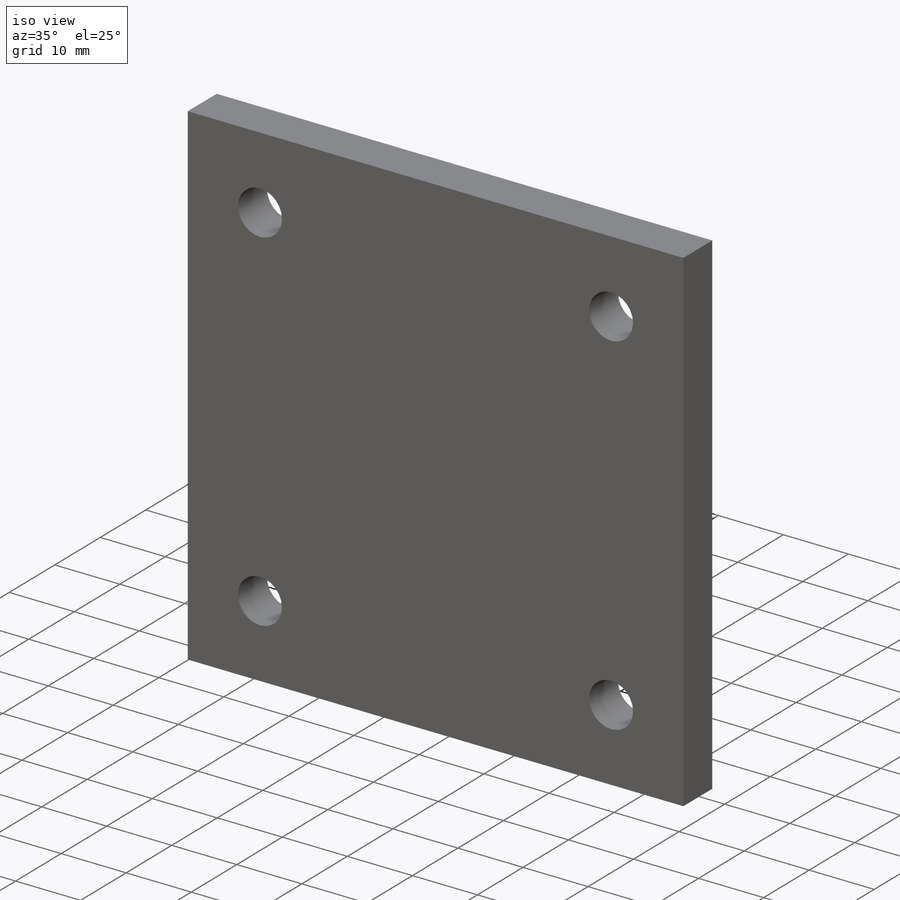
[diagram: iso view]
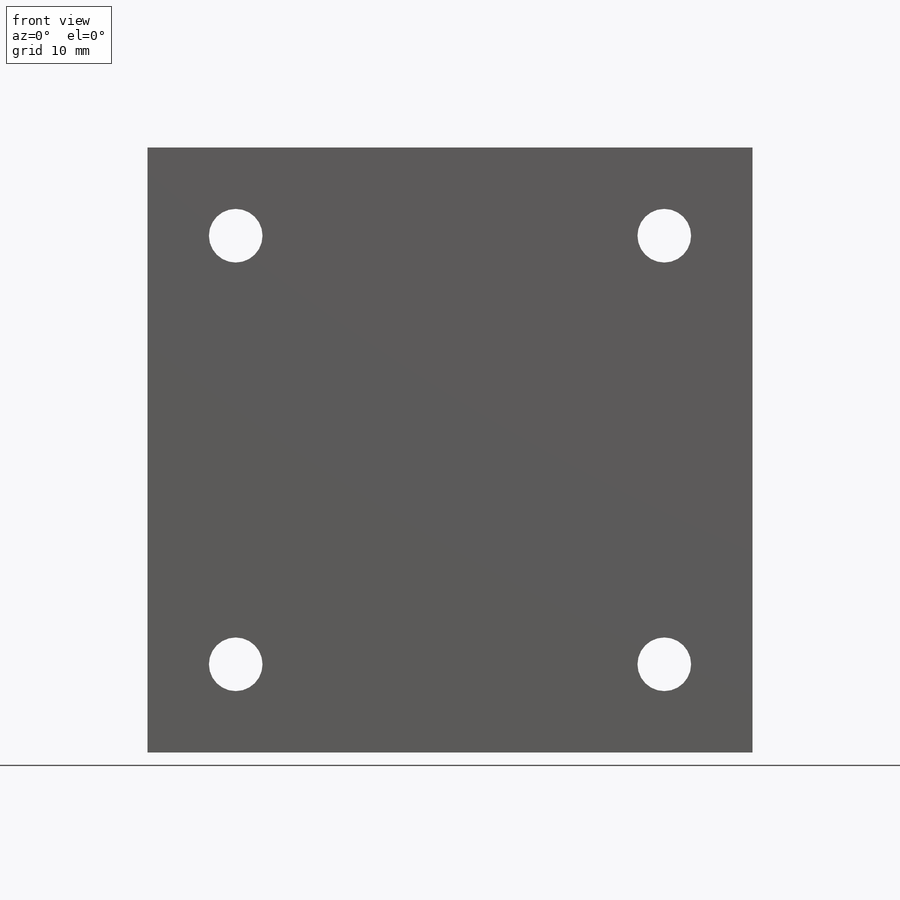
[diagram: front view]
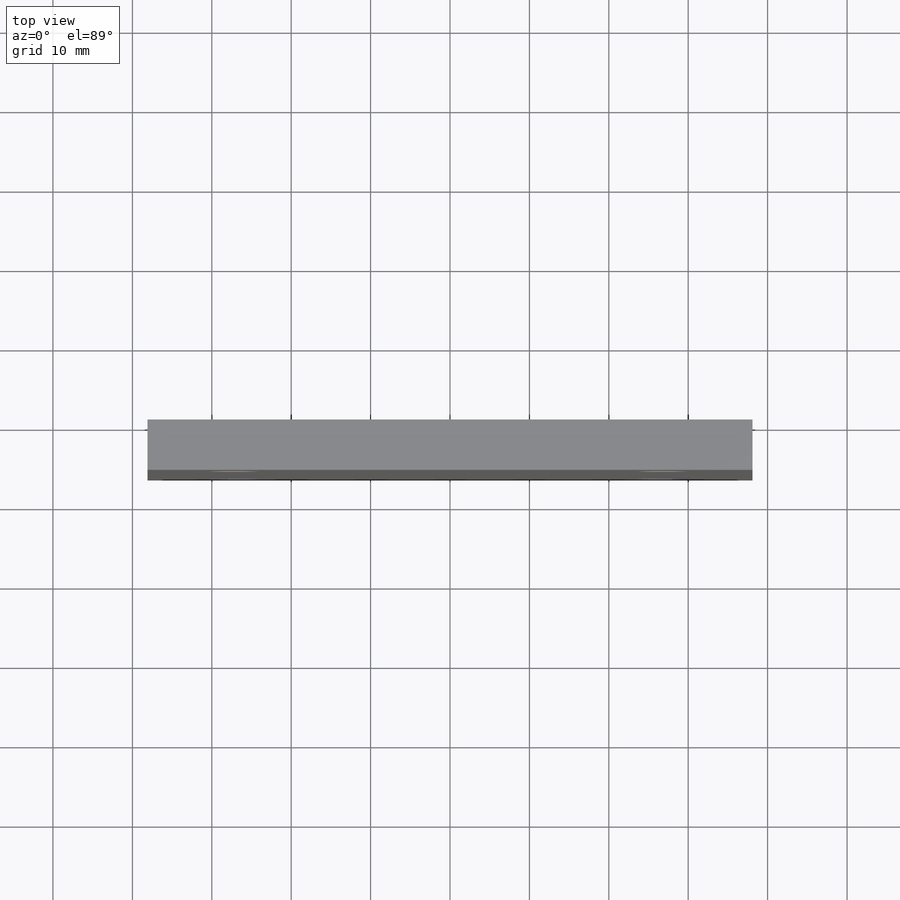
[diagram: top view]
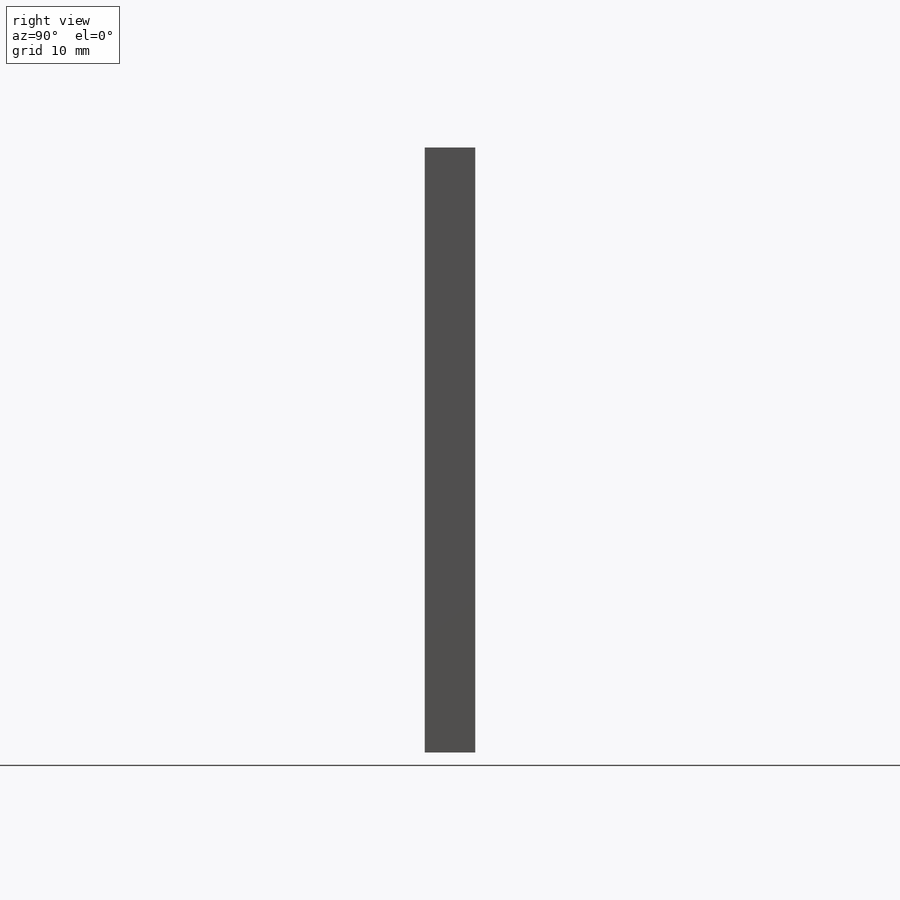
[diagram: right view]
SOLIDWORKS PART (.sldprt)
format: sldprt  version: not decoded by parser v0  size: 158,208 bytes
history: native  units: mm
features: sketch x4, material x1, extrude x1, hole x1 (+12 scaffold rows collapsed)
feature tree (19):
  scaffold x12  (default folders/planes/origin — collapsed)
  material  "Plain Carbon Steel"
  sketch  "Sketch1"  dims[D1=76.2mm]
  extrude  "Extrude1"  Depth=6.35mm
  sketch  "Sketch2"  dims[D1=53.975mm]
  hole  "1/4 Clearance Hole1"  Diameter=6.7564mm Depth=6.35mm
  sketch  "Sketch4"
  sketch  "Sketch5"  dims[hole-wizard template sketch: 61 standard entries collapsed; hole parameters above]
decode coverage: 5 of 6 modeling features carry decoded parameters
note: ~ marks probable driven/reference dimensions
note: suppression state not decoded; provenance and decode notes live in map.json
